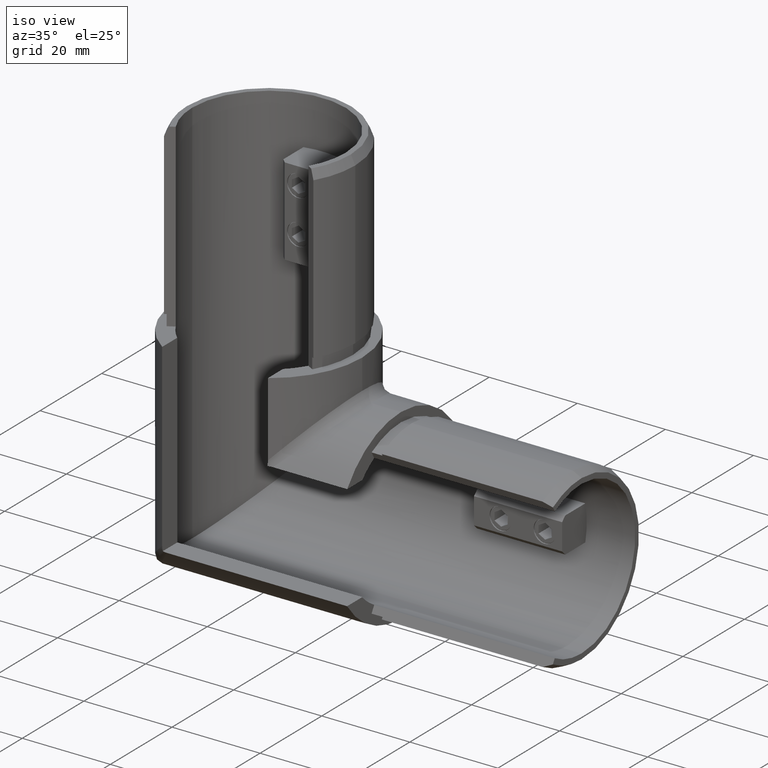
[diagram: clean part render]
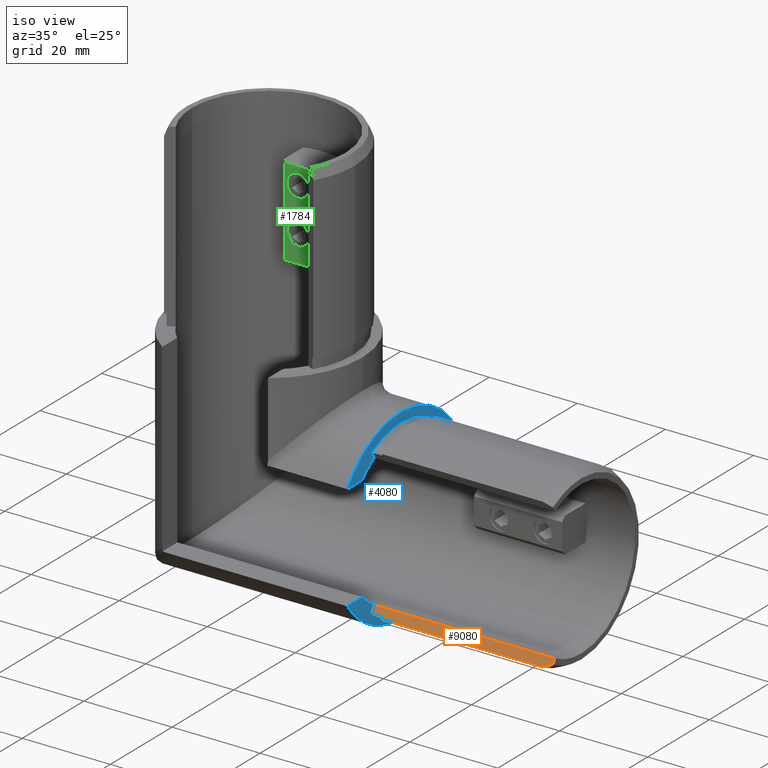
[diagram: same view with three faces highlighted in distinct colors, each labeled with its STEP entity id]
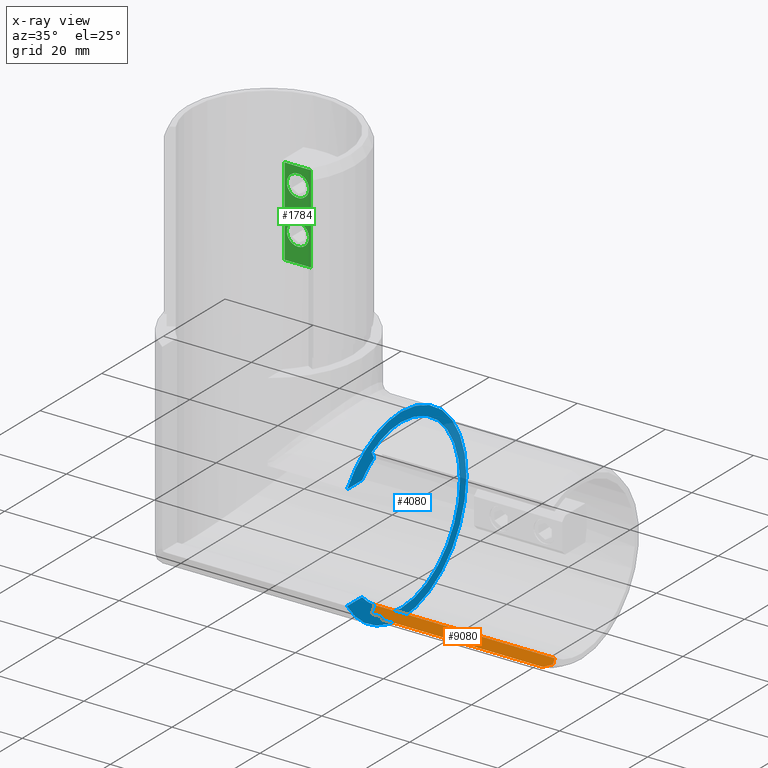
[diagram: x-ray of the same camera — body ghosted, the three highlighted faces saturated]
A machine part, iso view with three faces highlighted in distinct colors.
The next image is the same camera in x-ray (body ghosted, the three faces saturated) — at least one of them is partly hidden behind the body in this view.
Their STEP definitions:

[orange] entity #9080 — the highlighted planar face has unit normal (0, -0.866, 0.5).
#96 = CARTESIAN_POINT ( 'NONE',  ( 32.49999999999999300, -9.800000378167187200, -16.97409769584008300 ) ) ;
#352 = VERTEX_POINT ( 'NONE', #8018 ) ;
#1106 = DIRECTION ( 'NONE',  ( 0.8944271909999174100, 0.2236067977499768800, 0.3872983346207395900 ) ) ;
#1902 = CARTESIAN_POINT ( 'NONE',  ( 32.49999999999999300, -9.550000378167187200, -16.54108499394786200 ) ) ;
#2475 = FACE_OUTER_BOUND ( 'NONE', #5559, .T. ) ;
#2506 = DIRECTION ( 'NONE',  ( 1.922962686383570500E-016, 0.4999999999999945600, 0.8660254037844418200 ) ) ;
#3345 = ORIENTED_EDGE ( 'NONE', *, *, #16054, .F. ) ;
#3634 = CARTESIAN_POINT ( 'NONE',  ( 71.00000000000000000, -9.300000378167183600, -16.10807229205564900 ) ) ;
#3741 = VERTEX_POINT ( 'NONE', #4281 ) ;
#4110 = ORIENTED_EDGE ( 'NONE', *, *, #13783, .F. ) ;
#4281 = CARTESIAN_POINT ( 'NONE',  ( 71.00000000000001400, -8.700000378167198200, -15.06884180751433000 ) ) ;
#4287 = DIRECTION ( 'NONE',  ( -1.000000000000000000, -0.0000000000000000000, 4.440892098500625700E-016 ) ) ;
#4801 = VERTEX_POINT ( 'NONE', #3634 ) ;
#5101 = VECTOR ( 'NONE', #4287, 1000.000000000000000 ) ;
#5121 = VECTOR ( 'NONE', #10293, 1000.000000000000000 ) ;
#5349 = CARTESIAN_POINT ( 'NONE',  ( 32.49999999999999300, -8.700000378167198200, -15.06884180751431400 ) ) ;
#5523 = DIRECTION ( 'NONE',  ( 1.922962686383570500E-016, 0.4999999999999945600, 0.8660254037844418200 ) ) ;
#5559 = EDGE_LOOP ( 'NONE', ( #9527, #9654, #19287, #9534, #3345, #7929, #4110 ) ) ;
#6677 = EDGE_CURVE ( 'NONE', #19352, #13016, #9562, .T. ) ;
#7228 = EDGE_CURVE ( 'NONE', #3741, #20078, #13688, .T. ) ;
#7462 = CARTESIAN_POINT ( 'NONE',  ( 71.00000000000000000, -9.800000378167187200, -16.97409769584010100 ) ) ;
#7610 = DIRECTION ( 'NONE',  ( 2.220446049250304500E-016, -0.8660254037844397100, 0.4999999999999981100 ) ) ;
#7680 = LINE ( 'NONE', #18156, #10525 ) ;
#7835 = LINE ( 'NONE', #20649, #21054 ) ;
#7929 = ORIENTED_EDGE ( 'NONE', *, *, #6677, .F. ) ;
#8018 = CARTESIAN_POINT ( 'NONE',  ( 68.99999999999994300, -9.800000378167194300, -16.97409769584010400 ) ) ;
#8626 = PLANE ( 'NONE',  #18860 ) ;
#9049 = CARTESIAN_POINT ( 'NONE',  ( 30.00000000000000000, -8.700000378167191100, -15.06884180751430200 ) ) ;
#9080 = ADVANCED_FACE ( 'NONE', ( #2475 ), #8626, .T. ) ;
#9527 = ORIENTED_EDGE ( 'NONE', *, *, #13474, .F. ) ;
#9534 = ORIENTED_EDGE ( 'NONE', *, *, #7228, .T. ) ;
#9562 = LINE ( 'NONE', #20379, #5121 ) ;
#9654 = ORIENTED_EDGE ( 'NONE', *, *, #21437, .T. ) ;
#9911 = LINE ( 'NONE', #19484, #13785 ) ;
#10293 = DIRECTION ( 'NONE',  ( -1.000000000000000000, -0.0000000000000000000, 4.440892098500625700E-016 ) ) ;
#10525 = VECTOR ( 'NONE', #1106, 1000.000000000000100 ) ;
#11632 = DIRECTION ( 'NONE',  ( 1.922962686383565800E-016, 0.4999999999999981100, 0.8660254037844397100 ) ) ;
#13016 = VERTEX_POINT ( 'NONE', #18845 ) ;
#13474 = EDGE_CURVE ( 'NONE', #352, #20884, #9911, .T. ) ;
#13688 = LINE ( 'NONE', #14257, #5101 ) ;
#13783 = EDGE_CURVE ( 'NONE', #20884, #19352, #7835, .T. ) ;
#13785 = VECTOR ( 'NONE', #19631, 1000.000000000000000 ) ;
#14257 = CARTESIAN_POINT ( 'NONE',  ( 32.49999999999999300, -8.700000378167198200, -15.06884180751431400 ) ) ;
#15072 = EDGE_CURVE ( 'NONE', #4801, #3741, #19495, .T. ) ;
#15875 = DIRECTION ( 'NONE',  ( 0.0000000000000000000, -0.4999999999999981100, -0.8660254037844397100 ) ) ;
#16054 = EDGE_CURVE ( 'NONE', #13016, #20078, #17384, .T. ) ;
#16547 = CARTESIAN_POINT ( 'NONE',  ( 29.99999999999999600, -8.700000378167198200, -15.06884180751431200 ) ) ;
#17384 = LINE ( 'NONE', #16547, #21059 ) ;
#18156 = CARTESIAN_POINT ( 'NONE',  ( 108.2000000000002600, -3.781672316325768200E-007, 2.183349049313101800E-007 ) ) ;
#18845 = CARTESIAN_POINT ( 'NONE',  ( 29.99999999999999600, -9.550000378167187200, -16.54108499394786200 ) ) ;
#18860 = AXIS2_PLACEMENT_3D ( 'NONE', #5349, #7610, #15875 ) ;
#19205 = VECTOR ( 'NONE', #2506, 1000.000000000000000 ) ;
#19287 = ORIENTED_EDGE ( 'NONE', *, *, #15072, .T. ) ;
#19352 = VERTEX_POINT ( 'NONE', #1902 ) ;
#19484 = CARTESIAN_POINT ( 'NONE',  ( 71.00000000000000000, -9.800000378167187200, -16.97409769584010100 ) ) ;
#19495 = LINE ( 'NONE', #7462, #19205 ) ;
#19631 = DIRECTION ( 'NONE',  ( -1.000000000000000000, -0.0000000000000000000, 4.440892098500625200E-016 ) ) ;
#20078 = VERTEX_POINT ( 'NONE', #9049 ) ;
#20379 = CARTESIAN_POINT ( 'NONE',  ( 32.49999999999999300, -9.550000378167187200, -16.54108499394786200 ) ) ;
#20649 = CARTESIAN_POINT ( 'NONE',  ( 32.49999999999999300, -9.800000378167187200, -16.97409769584008300 ) ) ;
#20884 = VERTEX_POINT ( 'NONE', #96 ) ;
#21054 = VECTOR ( 'NONE', #5523, 1000.000000000000000 ) ;
#21059 = VECTOR ( 'NONE', #11632, 1000.000000000000000 ) ;
#21437 = EDGE_CURVE ( 'NONE', #352, #4801, #7680, .T. ) ;

[blue] entity #4080 — the highlighted planar face has unit normal (1, 0, 0).
#323 = DIRECTION ( 'NONE',  ( 1.922962686383565800E-016, -0.4999999999999981100, 0.8660254037844397100 ) ) ;
#450 = CARTESIAN_POINT ( 'NONE',  ( 30.00000000000000000, 0.0000000000000000000, -1.332267629550187500E-014 ) ) ;
#820 = VERTEX_POINT ( 'NONE', #9350 ) ;
#856 = DIRECTION ( 'NONE',  ( 1.000000000000000000, 0.0000000000000000000, 0.0000000000000000000 ) ) ;
#1272 = ORIENTED_EDGE ( 'NONE', *, *, #16054, .T. ) ;
#1381 = AXIS2_PLACEMENT_3D ( 'NONE', #10242, #11833, #5285 ) ;
#1382 = CARTESIAN_POINT ( 'NONE',  ( 30.00000000000000000, 2.596251214192388800E-015, 21.20000000000000300 ) ) ;
#1983 = EDGE_CURVE ( 'NONE', #9811, #19421, #4188, .T. ) ;
#2214 = ORIENTED_EDGE ( 'NONE', *, *, #16530, .T. ) ;
#2264 = CIRCLE ( 'NONE', #1381, 21.20000000000000300 ) ;
#2765 = EDGE_CURVE ( 'NONE', #4427, #18518, #18717, .T. ) ;
#3451 = CARTESIAN_POINT ( 'NONE',  ( 30.00000000000000400, -8.700000378167198200, 15.06884180751428400 ) ) ;
#3568 = DIRECTION ( 'NONE',  ( 1.816464372750583100E-016, 0.0000000000000000000, 1.000000000000000000 ) ) ;
#4031 = DIRECTION ( 'NONE',  ( 0.0000000000000000000, 1.776356839400250500E-015, -1.000000000000000000 ) ) ;
#4080 = ADVANCED_FACE ( 'NONE', ( #11206 ), #18689, .T. ) ;
#4172 = CARTESIAN_POINT ( 'NONE',  ( 30.00000000000000000, -12.60000000000000900, -11.99999999999999500 ) ) ;
#4176 = CARTESIAN_POINT ( 'NONE',  ( 30.00000000000000000, 0.0000000000000000000, 0.0000000000000000000 ) ) ;
#4188 = CIRCLE ( 'NONE', #4206, 19.10000000000000100 ) ;
#4206 = AXIS2_PLACEMENT_3D ( 'NONE', #12186, #10724, #5631 ) ;
#4239 = AXIS2_PLACEMENT_3D ( 'NONE', #7489, #856, #15821 ) ;
#4258 = EDGE_CURVE ( 'NONE', #11171, #17568, #15593, .T. ) ;
#4427 = VERTEX_POINT ( 'NONE', #12763 ) ;
#4568 = ORIENTED_EDGE ( 'NONE', *, *, #14633, .F. ) ;
#4604 = CIRCLE ( 'NONE', #4239, 17.40000000000000200 ) ;
#4763 = ORIENTED_EDGE ( 'NONE', *, *, #6275, .F. ) ;
#4806 = DIRECTION ( 'NONE',  ( 1.000000000000000000, 0.0000000000000000000, 0.0000000000000000000 ) ) ;
#5285 = DIRECTION ( 'NONE',  ( 0.0000000000000000000, 0.0000000000000000000, -1.000000000000000000 ) ) ;
#5631 = DIRECTION ( 'NONE',  ( 1.816464372750583100E-016, 0.0000000000000000000, 1.000000000000000000 ) ) ;
#5719 = LINE ( 'NONE', #6472, #5976 ) ;
#5976 = VECTOR ( 'NONE', #19753, 1000.000000000000000 ) ;
#6019 = CIRCLE ( 'NONE', #6091, 19.10000000000000100 ) ;
#6021 = VERTEX_POINT ( 'NONE', #20628 ) ;
#6091 = AXIS2_PLACEMENT_3D ( 'NONE', #20632, #20556, #18792 ) ;
#6207 = ORIENTED_EDGE ( 'NONE', *, *, #4258, .F. ) ;
#6243 = DIRECTION ( 'NONE',  ( 0.0000000000000000000, -1.000000000000000000, 0.0000000000000000000 ) ) ;
#6275 = EDGE_CURVE ( 'NONE', #16880, #820, #4604, .T. ) ;
#6472 = CARTESIAN_POINT ( 'NONE',  ( 29.99999999999999600, -12.60000000000000300, -11.99999999999998900 ) ) ;
#6866 = VERTEX_POINT ( 'NONE', #4172 ) ;
#6881 = CARTESIAN_POINT ( 'NONE',  ( 30.00000000000000000, 1.861579090018612700, 0.0000000000000000000 ) ) ;
#6950 = DIRECTION ( 'NONE',  ( 1.000000000000000000, 0.0000000000000000000, 0.0000000000000000000 ) ) ;
#7105 = LINE ( 'NONE', #19236, #13852 ) ;
#7489 = CARTESIAN_POINT ( 'NONE',  ( 30.00000000000000000, 0.0000000000000000000, 0.0000000000000000000 ) ) ;
#7525 = ORIENTED_EDGE ( 'NONE', *, *, #18745, .F. ) ;
#8244 = CIRCLE ( 'NONE', #19371, 17.40000000000000200 ) ;
#8835 = CARTESIAN_POINT ( 'NONE',  ( 30.00000000000000700, 0.0000000000000000000, 19.09999999999998700 ) ) ;
#9049 = CARTESIAN_POINT ( 'NONE',  ( 30.00000000000000000, -8.700000378167191100, -15.06884180751430200 ) ) ;
#9280 = ORIENTED_EDGE ( 'NONE', *, *, #13889, .T. ) ;
#9350 = CARTESIAN_POINT ( 'NONE',  ( 30.00000000000000000, -12.60000000000000300, 11.99999999999999600 ) ) ;
#9696 = CARTESIAN_POINT ( 'NONE',  ( 30.00000000000000400, -8.700000378167198200, 15.06884180751428400 ) ) ;
#9811 = VERTEX_POINT ( 'NONE', #8835 ) ;
#10004 = EDGE_CURVE ( 'NONE', #820, #11171, #7105, .T. ) ;
#10242 = CARTESIAN_POINT ( 'NONE',  ( 30.00000000000000000, 0.0000000000000000000, 0.0000000000000000000 ) ) ;
#10651 = LINE ( 'NONE', #3451, #12475 ) ;
#10724 = DIRECTION ( 'NONE',  ( -1.000000000000000000, -0.0000000000000000000, 4.440892098500625200E-016 ) ) ;
#11171 = VERTEX_POINT ( 'NONE', #15350 ) ;
#11206 = FACE_OUTER_BOUND ( 'NONE', #13042, .T. ) ;
#11574 = CARTESIAN_POINT ( 'NONE',  ( 30.00000000000000000, 0.0000000000000000000, 0.0000000000000000000 ) ) ;
#11632 = DIRECTION ( 'NONE',  ( 1.922962686383565800E-016, 0.4999999999999981100, 0.8660254037844397100 ) ) ;
#11833 = DIRECTION ( 'NONE',  ( -1.000000000000000000, -0.0000000000000000000, -0.0000000000000000000 ) ) ;
#11835 = EDGE_CURVE ( 'NONE', #19421, #13016, #6019, .T. ) ;
#12186 = CARTESIAN_POINT ( 'NONE',  ( 30.00000000000000000, 0.0000000000000000000, -1.332267629550187500E-014 ) ) ;
#12306 = AXIS2_PLACEMENT_3D ( 'NONE', #6881, #6950, #15429 ) ;
#12332 = DIRECTION ( 'NONE',  ( -1.000000000000000000, -0.0000000000000000000, -0.0000000000000000000 ) ) ;
#12475 = VECTOR ( 'NONE', #323, 1000.000000000000000 ) ;
#12763 = CARTESIAN_POINT ( 'NONE',  ( 30.00000000000000000, 0.0000000000000000000, -21.20000000000000300 ) ) ;
#13016 = VERTEX_POINT ( 'NONE', #18845 ) ;
#13042 = EDGE_LOOP ( 'NONE', ( #4763, #9280, #2214, #16559, #15128, #1272, #7525, #4568, #15742, #16863, #6207, #19496 ) ) ;
#13339 = CARTESIAN_POINT ( 'NONE',  ( 29.99999999999999300, 2.339075386371445100E-015, -19.10000000000001600 ) ) ;
#13852 = VECTOR ( 'NONE', #6243, 1000.000000000000000 ) ;
#13889 = EDGE_CURVE ( 'NONE', #16880, #6021, #10651, .T. ) ;
#14633 = EDGE_CURVE ( 'NONE', #18518, #6866, #5719, .T. ) ;
#15128 = ORIENTED_EDGE ( 'NONE', *, *, #11835, .T. ) ;
#15347 = DIRECTION ( 'NONE',  ( -1.000000000000000000, -0.0000000000000000000, -0.0000000000000000000 ) ) ;
#15350 = CARTESIAN_POINT ( 'NONE',  ( 30.00000000000000000, -17.47684181996279000, 12.00000000000000000 ) ) ;
#15429 = DIRECTION ( 'NONE',  ( 0.0000000000000000000, 0.0000000000000000000, -1.000000000000000000 ) ) ;
#15483 = DIRECTION ( 'NONE',  ( -1.000000000000000000, -0.0000000000000000000, 4.440892098500625200E-016 ) ) ;
#15593 = CIRCLE ( 'NONE', #20797, 21.20000000000000300 ) ;
#15742 = ORIENTED_EDGE ( 'NONE', *, *, #2765, .F. ) ;
#15821 = DIRECTION ( 'NONE',  ( 0.0000000000000000000, 0.0000000000000000000, -1.000000000000000000 ) ) ;
#16054 = EDGE_CURVE ( 'NONE', #13016, #20078, #17384, .T. ) ;
#16530 = EDGE_CURVE ( 'NONE', #6021, #9811, #18690, .T. ) ;
#16547 = CARTESIAN_POINT ( 'NONE',  ( 29.99999999999999600, -8.700000378167198200, -15.06884180751431200 ) ) ;
#16559 = ORIENTED_EDGE ( 'NONE', *, *, #1983, .T. ) ;
#16863 = ORIENTED_EDGE ( 'NONE', *, *, #17814, .F. ) ;
#16880 = VERTEX_POINT ( 'NONE', #9696 ) ;
#16993 = AXIS2_PLACEMENT_3D ( 'NONE', #18610, #15347, #20246 ) ;
#17384 = LINE ( 'NONE', #16547, #21059 ) ;
#17568 = VERTEX_POINT ( 'NONE', #1382 ) ;
#17814 = EDGE_CURVE ( 'NONE', #17568, #4427, #2264, .T. ) ;
#18518 = VERTEX_POINT ( 'NONE', #20881 ) ;
#18610 = CARTESIAN_POINT ( 'NONE',  ( 30.00000000000000000, 0.0000000000000000000, 0.0000000000000000000 ) ) ;
#18689 = PLANE ( 'NONE',  #12306 ) ;
#18690 = CIRCLE ( 'NONE', #19900, 19.10000000000000100 ) ;
#18717 = CIRCLE ( 'NONE', #16993, 21.20000000000000300 ) ;
#18745 = EDGE_CURVE ( 'NONE', #6866, #20078, #8244, .T. ) ;
#18792 = DIRECTION ( 'NONE',  ( 1.816464372750583100E-016, 0.0000000000000000000, 1.000000000000000000 ) ) ;
#18845 = CARTESIAN_POINT ( 'NONE',  ( 29.99999999999999600, -9.550000378167187200, -16.54108499394786200 ) ) ;
#19236 = CARTESIAN_POINT ( 'NONE',  ( 30.00000000000000000, -12.60000000000000300, 11.99999999999999600 ) ) ;
#19371 = AXIS2_PLACEMENT_3D ( 'NONE', #11574, #4806, #21508 ) ;
#19421 = VERTEX_POINT ( 'NONE', #13339 ) ;
#19496 = ORIENTED_EDGE ( 'NONE', *, *, #10004, .F. ) ;
#19753 = DIRECTION ( 'NONE',  ( 0.0000000000000000000, 1.000000000000000000, -0.0000000000000000000 ) ) ;
#19900 = AXIS2_PLACEMENT_3D ( 'NONE', #450, #15483, #3568 ) ;
#20078 = VERTEX_POINT ( 'NONE', #9049 ) ;
#20246 = DIRECTION ( 'NONE',  ( 0.0000000000000000000, 0.0000000000000000000, -1.000000000000000000 ) ) ;
#20556 = DIRECTION ( 'NONE',  ( -1.000000000000000000, -0.0000000000000000000, 4.440892098500625200E-016 ) ) ;
#20628 = CARTESIAN_POINT ( 'NONE',  ( 30.00000000000000400, -9.550000378167194300, 16.54108499394783000 ) ) ;
#20632 = CARTESIAN_POINT ( 'NONE',  ( 30.00000000000000000, 0.0000000000000000000, -1.332267629550187500E-014 ) ) ;
#20797 = AXIS2_PLACEMENT_3D ( 'NONE', #4176, #12332, #4031 ) ;
#20881 = CARTESIAN_POINT ( 'NONE',  ( 29.99999999999998200, -17.47684181996278600, -11.99999999999998900 ) ) ;
#21059 = VECTOR ( 'NONE', #11632, 1000.000000000000000 ) ;
#21508 = DIRECTION ( 'NONE',  ( 0.0000000000000000000, 0.0000000000000000000, -1.000000000000000000 ) ) ;

[green] entity #1784 — the highlighted planar face has unit normal (0, 1, 0).
#43 = DIRECTION ( 'NONE',  ( -0.0000000000000000000, -1.000000000000000000, -0.0000000000000000000 ) ) ;
#63 = ORIENTED_EDGE ( 'NONE', *, *, #14603, .F. ) ;
#444 = DIRECTION ( 'NONE',  ( 0.0000000000000000000, 0.0000000000000000000, -1.000000000000000000 ) ) ;
#526 = EDGE_CURVE ( 'NONE', #3455, #7325, #7602, .T. ) ;
#875 = CARTESIAN_POINT ( 'NONE',  ( -2.999999999938189000, 9.399999999999705500, 60.00000000000000700 ) ) ;
#1302 = DIRECTION ( 'NONE',  ( -0.0000000000000000000, -1.000000000000000000, -0.0000000000000000000 ) ) ;
#1671 = CARTESIAN_POINT ( 'NONE',  ( 2.098935939268950700E-016, 9.400000000000000400, 43.50000000000001400 ) ) ;
#1784 = ADVANCED_FACE ( 'NONE', ( #15638, #4980, #17698 ), #12715, .F. ) ;
#2369 = LINE ( 'NONE', #9451, #16148 ) ;
#2575 = CARTESIAN_POINT ( 'NONE',  ( 2.999999999950013800, 9.399999999971283800, 60.00000000000001400 ) ) ;
#2898 = DIRECTION ( 'NONE',  ( 0.0000000000000000000, 0.0000000000000000000, -1.000000000000000000 ) ) ;
#2913 = EDGE_CURVE ( 'NONE', #2917, #3455, #20838, .T. ) ;
#2917 = VERTEX_POINT ( 'NONE', #12399 ) ;
#2939 = EDGE_LOOP ( 'NONE', ( #16066, #10312 ) ) ;
#3455 = VERTEX_POINT ( 'NONE', #19651 ) ;
#4255 = VERTEX_POINT ( 'NONE', #14141 ) ;
#4284 = CARTESIAN_POINT ( 'NONE',  ( 0.0000000000000000000, 9.400000000000000400, 53.50000000000001400 ) ) ;
#4628 = AXIS2_PLACEMENT_3D ( 'NONE', #9594, #17832, #19457 ) ;
#4927 = DIRECTION ( 'NONE',  ( 0.0000000000000000000, 0.0000000000000000000, 1.000000000000000000 ) ) ;
#4980 = FACE_BOUND ( 'NONE', #9491, .T. ) ;
#5453 = DIRECTION ( 'NONE',  ( -0.0000000000000000000, -1.000000000000000000, -0.0000000000000000000 ) ) ;
#6116 = VERTEX_POINT ( 'NONE', #9087 ) ;
#6391 = DIRECTION ( 'NONE',  ( -0.0000000000000000000, -1.000000000000000000, -0.0000000000000000000 ) ) ;
#6393 = CARTESIAN_POINT ( 'NONE',  ( -0.0000000000000000000, 9.400000000000000400, 56.00000000000000000 ) ) ;
#6669 = AXIS2_PLACEMENT_3D ( 'NONE', #10395, #5453, #444 ) ;
#7210 = VERTEX_POINT ( 'NONE', #875 ) ;
#7325 = VERTEX_POINT ( 'NONE', #2575 ) ;
#7535 = ORIENTED_EDGE ( 'NONE', *, *, #14447, .T. ) ;
#7602 = LINE ( 'NONE', #21425, #19022 ) ;
#7689 = CIRCLE ( 'NONE', #12337, 2.499999999999988500 ) ;
#7926 = EDGE_CURVE ( 'NONE', #18660, #6116, #7689, .T. ) ;
#8119 = DIRECTION ( 'NONE',  ( 0.0000000000000000000, 0.0000000000000000000, -1.000000000000000000 ) ) ;
#9087 = CARTESIAN_POINT ( 'NONE',  ( 5.160552937137325200E-016, 9.400000000000000400, 48.49999999999998600 ) ) ;
#9171 = ORIENTED_EDGE ( 'NONE', *, *, #11958, .T. ) ;
#9196 = CIRCLE ( 'NONE', #13329, 2.499999999999988500 ) ;
#9451 = CARTESIAN_POINT ( 'NONE',  ( 3.999999999999997300, 9.400000000000002100, 60.00000000000001400 ) ) ;
#9491 = EDGE_LOOP ( 'NONE', ( #63, #14882 ) ) ;
#9594 = CARTESIAN_POINT ( 'NONE',  ( 0.0000000000000000000, 9.400000000000002100, 0.0000000000000000000 ) ) ;
#9672 = CARTESIAN_POINT ( 'NONE',  ( -3.000000000000001800, 9.400000000000002100, 40.00000000000000000 ) ) ;
#10000 = CARTESIAN_POINT ( 'NONE',  ( 2.098935939268950700E-016, 9.400000000000000400, 46.00000000000000000 ) ) ;
#10064 = EDGE_CURVE ( 'NONE', #4255, #13448, #9196, .T. ) ;
#10312 = ORIENTED_EDGE ( 'NONE', *, *, #15551, .F. ) ;
#10395 = CARTESIAN_POINT ( 'NONE',  ( 2.098935939268950700E-016, 9.400000000000000400, 46.00000000000000000 ) ) ;
#11958 = EDGE_CURVE ( 'NONE', #7325, #7210, #2369, .T. ) ;
#11962 = LINE ( 'NONE', #9672, #14055 ) ;
#12337 = AXIS2_PLACEMENT_3D ( 'NONE', #10000, #43, #8119 ) ;
#12399 = CARTESIAN_POINT ( 'NONE',  ( -2.999999999938189000, 9.399999999999705500, 40.00000000000000000 ) ) ;
#12650 = DIRECTION ( 'NONE',  ( -1.000000000000000000, 0.0000000000000000000, -8.673617379884035500E-016 ) ) ;
#12715 = PLANE ( 'NONE',  #4628 ) ;
#13329 = AXIS2_PLACEMENT_3D ( 'NONE', #6393, #1302, #2898 ) ;
#13448 = VERTEX_POINT ( 'NONE', #4284 ) ;
#13857 = EDGE_LOOP ( 'NONE', ( #9171, #7535, #14025, #18019 ) ) ;
#14025 = ORIENTED_EDGE ( 'NONE', *, *, #2913, .T. ) ;
#14049 = CIRCLE ( 'NONE', #15273, 2.499999999999988500 ) ;
#14055 = VECTOR ( 'NONE', #19390, 1000.000000000000000 ) ;
#14141 = CARTESIAN_POINT ( 'NONE',  ( 3.061616997868365400E-016, 9.400000000000000400, 58.49999999999999300 ) ) ;
#14447 = EDGE_CURVE ( 'NONE', #7210, #2917, #11962, .T. ) ;
#14603 = EDGE_CURVE ( 'NONE', #13448, #4255, #14049, .T. ) ;
#14807 = CARTESIAN_POINT ( 'NONE',  ( -0.0000000000000000000, 9.400000000000000400, 56.00000000000000000 ) ) ;
#14882 = ORIENTED_EDGE ( 'NONE', *, *, #10064, .F. ) ;
#15273 = AXIS2_PLACEMENT_3D ( 'NONE', #14807, #6391, #16526 ) ;
#15551 = EDGE_CURVE ( 'NONE', #6116, #18660, #20532, .T. ) ;
#15638 = FACE_BOUND ( 'NONE', #2939, .T. ) ;
#15722 = DIRECTION ( 'NONE',  ( 1.000000000000000000, -0.0000000000000000000, -0.0000000000000000000 ) ) ;
#16066 = ORIENTED_EDGE ( 'NONE', *, *, #7926, .F. ) ;
#16148 = VECTOR ( 'NONE', #12650, 1000.000000000000000 ) ;
#16389 = VECTOR ( 'NONE', #15722, 1000.000000000000000 ) ;
#16526 = DIRECTION ( 'NONE',  ( 0.0000000000000000000, 0.0000000000000000000, -1.000000000000000000 ) ) ;
#17143 = CARTESIAN_POINT ( 'NONE',  ( 3.999999999999997300, 9.400000000000002100, 40.00000000000000000 ) ) ;
#17698 = FACE_OUTER_BOUND ( 'NONE', #13857, .T. ) ;
#17832 = DIRECTION ( 'NONE',  ( 0.0000000000000000000, 1.000000000000000000, 0.0000000000000000000 ) ) ;
#18019 = ORIENTED_EDGE ( 'NONE', *, *, #526, .T. ) ;
#18660 = VERTEX_POINT ( 'NONE', #1671 ) ;
#19022 = VECTOR ( 'NONE', #4927, 1000.000000000000000 ) ;
#19390 = DIRECTION ( 'NONE',  ( 0.0000000000000000000, 0.0000000000000000000, -1.000000000000000000 ) ) ;
#19457 = DIRECTION ( 'NONE',  ( 0.0000000000000000000, -0.0000000000000000000, 1.000000000000000000 ) ) ;
#19651 = CARTESIAN_POINT ( 'NONE',  ( 2.999999999950013800, 9.399999999971283800, 40.00000000000000000 ) ) ;
#20532 = CIRCLE ( 'NONE', #6669, 2.499999999999988500 ) ;
#20838 = LINE ( 'NONE', #17143, #16389 ) ;
#21425 = CARTESIAN_POINT ( 'NONE',  ( 2.999999999999982700, 9.400000000000002100, 60.00000000000001400 ) ) ;